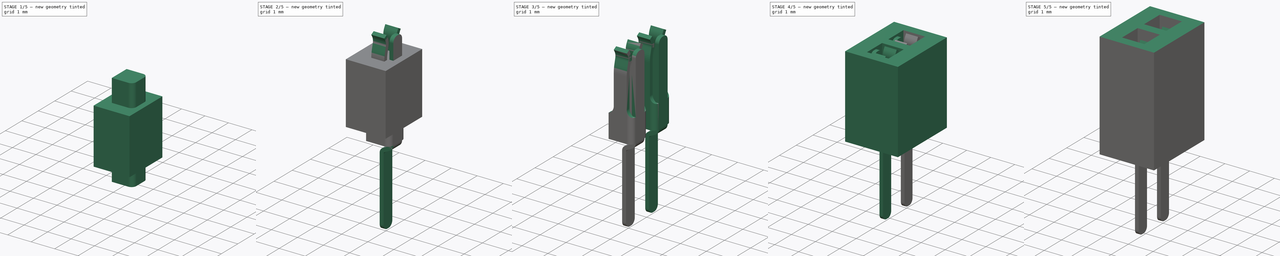
[diagram: build sequence overview — one tinted view per stage of 5, left to right]
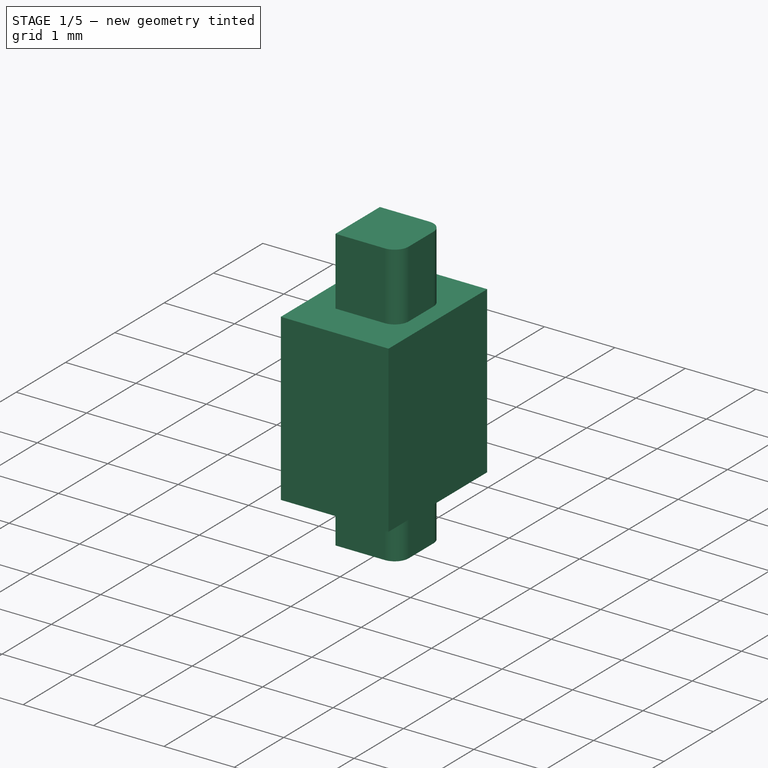
[diagram: stage 1 of 5 — iso view after this stage's code; geometry added in this stage tinted green]
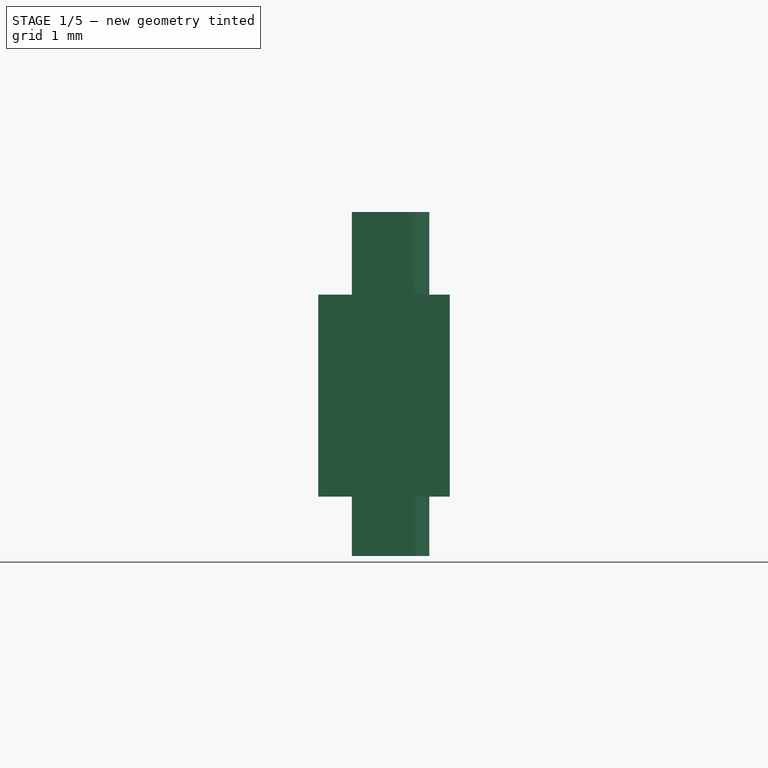
[diagram: stage 1 of 5 — front view after this stage's code; geometry added in this stage tinted green]
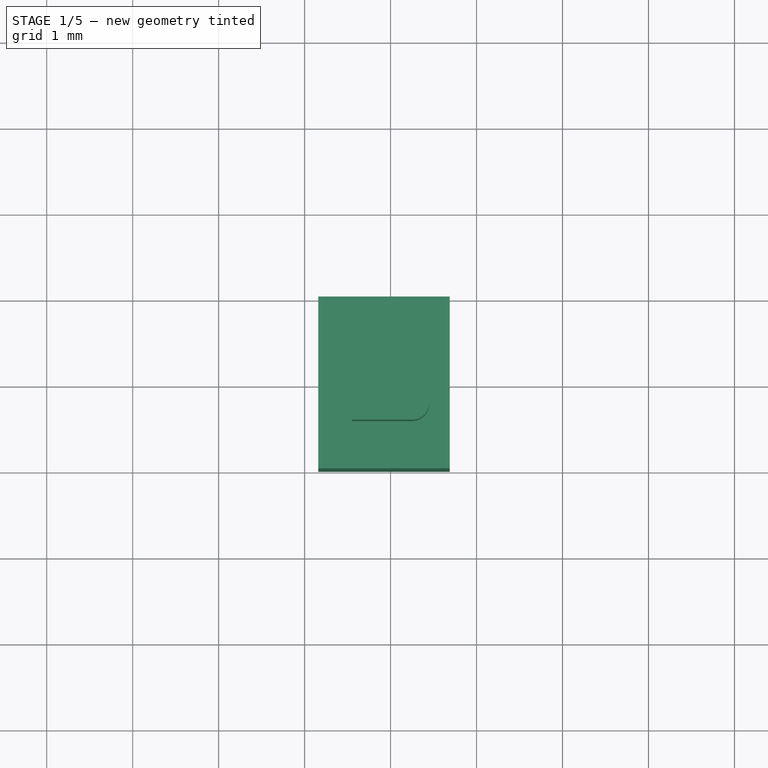
[diagram: stage 1 of 5 — top view after this stage's code; geometry added in this stage tinted green]
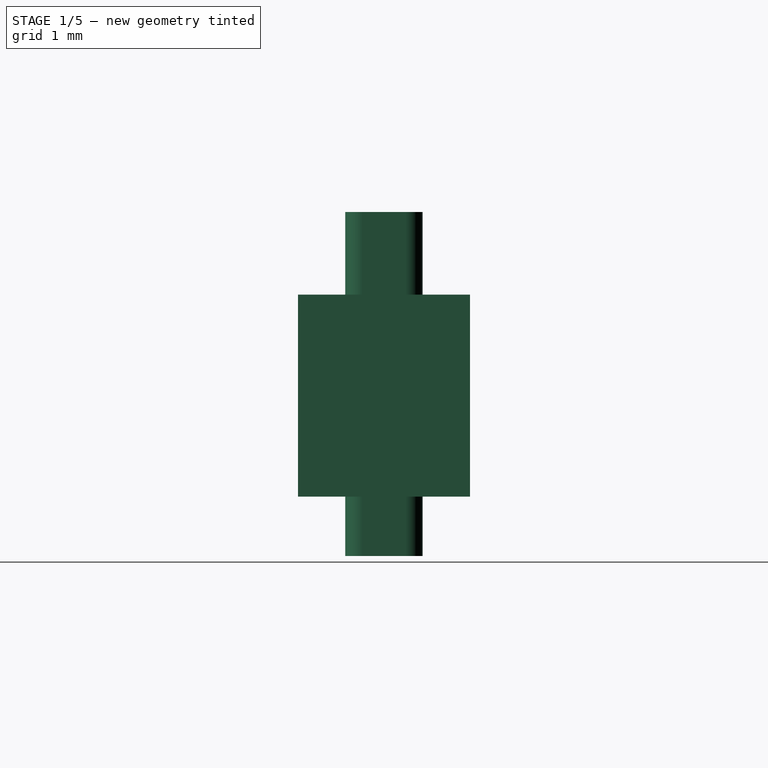
[diagram: stage 1 of 5 — right view after this stage's code; geometry added in this stage tinted green]
FCSTD DOCUMENT  (FreeCAD 0.16R6703 (Git))
Label: Socket_Strip_1.27mm
License: All rights reserved
LicenseURL: http://en.wikipedia.org/wiki/All_rights_reserved
objects: Sketcher::SketchObject×11, Part::Extrusion×10, Part::FeaturePython×6, Part::Cut×5, Part::MultiFuse×4, Part::Fillet×3, Part::MultiCommon×3, Part::Compound×3, Part::Sweep×2, Part::Mirroring×2, Part::Thickness×1
note: 50 computed .brp shape members not serialized (recipe doc carries the construction recipe); baked Part::Feature solids carry a one-line shape summary decoded from their .brp

FEATURE [Sketcher::SketchObject] Sketch006
  Placement = pos=(0,0,0) rot=(0.57735,-0.57735,-0.57735;2.0944rad)
  sketch-geometry (5):
    g0: LineSegment StartX=0.45 StartY=1.56 StartZ=0 EndX=0.45 EndY=3 EndZ=0
    g1: LineSegment StartX=0.414248 StartY=3.2914 StartZ=0 EndX=0.367236 EndY=3.4801 EndZ=0
    g2: LineSegment StartX=0.398859 StartY=3.71014 StartZ=0 EndX=0.45 EndY=3.8 EndZ=0
    g3: ArcOfCircle CenterX=-0.755409 CenterY=3 CenterZ=0 NormalX=0 NormalY=0 NormalZ=1 Radius=1.20541 StartAngle=0 EndAngle=0.244162
    g4: ArcOfCircle CenterX=0.670368 CenterY=3.55562 CenterZ=0 NormalX=0 NormalY=0 NormalZ=1 Radius=0.312397 StartAngle=2.62421 EndAngle=3.38575
  constraints (10):
    c: Vertical(g0)
    c: DistanceY(g2) = 3.8
    c: PointOnObject(g2,g0)
    c: Tangent(g1,g3) = -1.5708
    c: Tangent(g0,g3) = -1.5708
    c: Tangent(g1,g4) = 1.5708
    c: Tangent(g2,g4) = 1.5708
    c: DistanceY(g0) = 1.56
    c: DistanceX(g0) = 0.45
    c: DistanceY(g0) = 3
FEATURE [Sketcher::SketchObject] Sketch007
  Placement = pos=(0,0,1.56) rot=(0,0,1;0rad)
  sketch-geometry (4):
    g0: LineSegment StartX=-0.45 StartY=-0.3 StartZ=0 EndX=0.45 EndY=-0.3 EndZ=0
    g1: LineSegment StartX=0.45 StartY=-0.3 StartZ=0 EndX=0.45 EndY=-0.45 EndZ=0
    g2: LineSegment StartX=0.45 StartY=-0.45 StartZ=0 EndX=-0.45 EndY=-0.45 EndZ=0
    g3: LineSegment StartX=-0.45 StartY=-0.45 StartZ=0 EndX=-0.45 EndY=-0.3 EndZ=0
  constraints (12):
    c: Coincident(g0,g1)
    c: Coincident(g1,g2)
    c: Coincident(g2,g3)
    c: Coincident(g3,g0)
    c: Horizontal(g0)
    c: Horizontal(g2)
    c: Vertical(g1)
    c: Vertical(g3)
    c: Distance(g2) = 0.9
    c: Distance(g3) = 0.15
    c: Symmetric(g2,g1,g-2)
    c: DistanceY(g2) = -0.45
FEATURE [Part::Sweep] Sweep001
  Frenet = true
  Sections = -> [Sketch007]
  Solid = true
  Spine = -> Sketch006 [Edge1,Edge2,Edge3,Edge4,Edge5]
  Transition = 1
FEATURE [Sketcher::SketchObject] Sketch008
  Placement = pos=(0,-0.45,0) rot=(1,0,0;1.5708rad)
  sketch-geometry (6):
    g0: LineSegment StartX=-0.25 StartY=3.97605 StartZ=0 EndX=-0.25 EndY=1.84316 EndZ=0
    g1: LineSegment StartX=-0.437624 StartY=1.565 StartZ=0 EndX=-0.45 EndY=1.56 EndZ=0
    g2: LineSegment StartX=-0.25 StartY=3.97605 StartZ=0 EndX=-0.905765 EndY=3.97605 EndZ=0
    g3: LineSegment StartX=-0.905765 StartY=3.97605 StartZ=0 EndX=-0.905765 EndY=1.56 EndZ=0
    g4: LineSegment StartX=-0.905765 StartY=1.56 StartZ=0 EndX=-0.45 EndY=1.56 EndZ=0
    g5: ArcOfCircle CenterX=-0.55 CenterY=1.84316 CenterZ=0 NormalX=0 NormalY=0 NormalZ=1 Radius=0.3 StartAngle=5.09634 EndAngle=6.28319
  constraints (14):
    c: Vertical(g0)
    c: DistanceX(g1) = -0.45
    c: DistanceY(g1) = 1.56
    c: Coincident(g0,g2)
    c: Horizontal(g2)
    c: Coincident(g2,g3)
    c: Vertical(g3)
    c: Coincident(g3,g4)
    c: Coincident(g4,g1)
    c: Horizontal(g4)
    c: Tangent(g0,g5) = 1.5708
    c: Tangent(g1,g5) = 1.5708
    c: Radius(g5) = 0.3
    c: DistanceX(g0) = -0.25
FEATURE [Part::Extrusion] Extrude003
  Base = -> Sketch005
  Dir = (0,0,4)
  Solid = true
FEATURE [Part::Fillet] Fillet002
  Base = -> Extrude003
  Edges = 2 edges r=0.2: [Edge1,Edge8]
FEATURE [Part::Extrusion] Extrude004
  Base = -> Sketch008
  Dir = (0,1,0)
  Solid = true
FEATURE [Part::Mirroring] Part__Mirroring  label="Extrude004 (Mirror #1)"
  Base = (0,0,0)
  Normal = (1,0,0)
  Source = -> Extrude004
FEATURE [Part::MultiFuse] Fusion
  Shapes = -> [Part__Mirroring,Extrude004]
FEATURE [Part::Cut] Cut001
  Base = -> Sweep001
  Tool = -> Fusion
FEATURE [Sketcher::SketchObject] Sketch012
  Placement = pos=(0,-1,0) rot=(1,0,0;1.5708rad)
  sketch-geometry (4):
    g0: LineSegment StartX=-0.841523 StartY=3.1 StartZ=0 EndX=0.688328 EndY=3.1 EndZ=0
    g1: LineSegment StartX=0.688328 StartY=3.1 StartZ=0 EndX=0.688328 EndY=0.75 EndZ=0
    g2: LineSegment StartX=0.688328 StartY=0.75 StartZ=0 EndX=-0.841523 EndY=0.75 EndZ=0
    g3: LineSegment StartX=-0.841523 StartY=0.75 StartZ=0 EndX=-0.841523 EndY=3.1 EndZ=0
  constraints (10):
    c: Coincident(g0,g1)
    c: Coincident(g1,g2)
    c: Coincident(g2,g3)
    c: Coincident(g3,g0)
    c: Horizontal(g0)
    c: Horizontal(g2)
    c: Vertical(g1)
    c: Vertical(g3)
    c: DistanceY(g1) = 0.75
    c: Distance(g1) = 2.35
FEATURE [Part::Extrusion] Extrude010
  Base = -> Sketch012
  Dir = (0,2,0)
  Solid = true
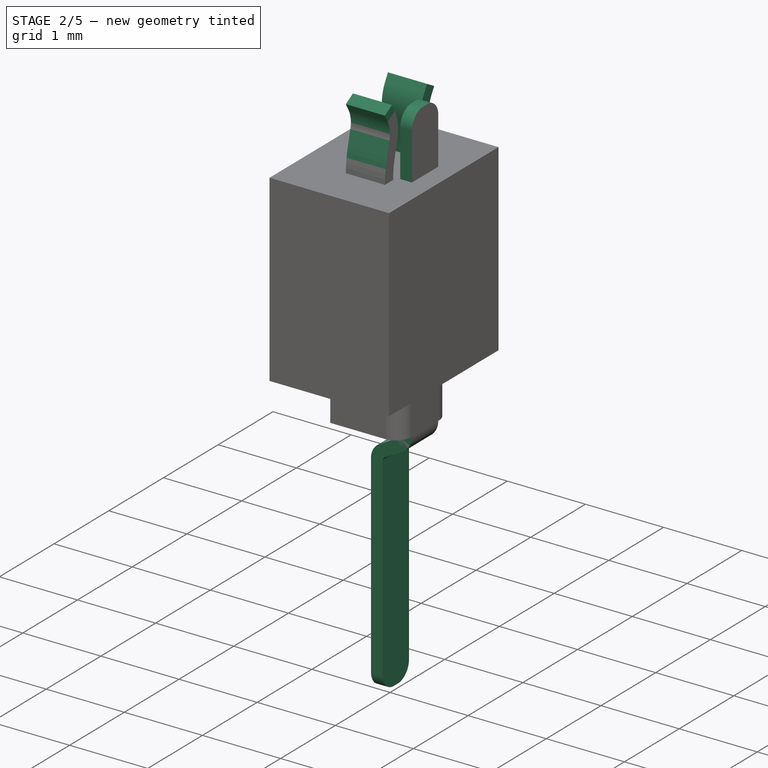
[diagram: stage 2 of 5 — iso view after this stage's code; geometry added in this stage tinted green]
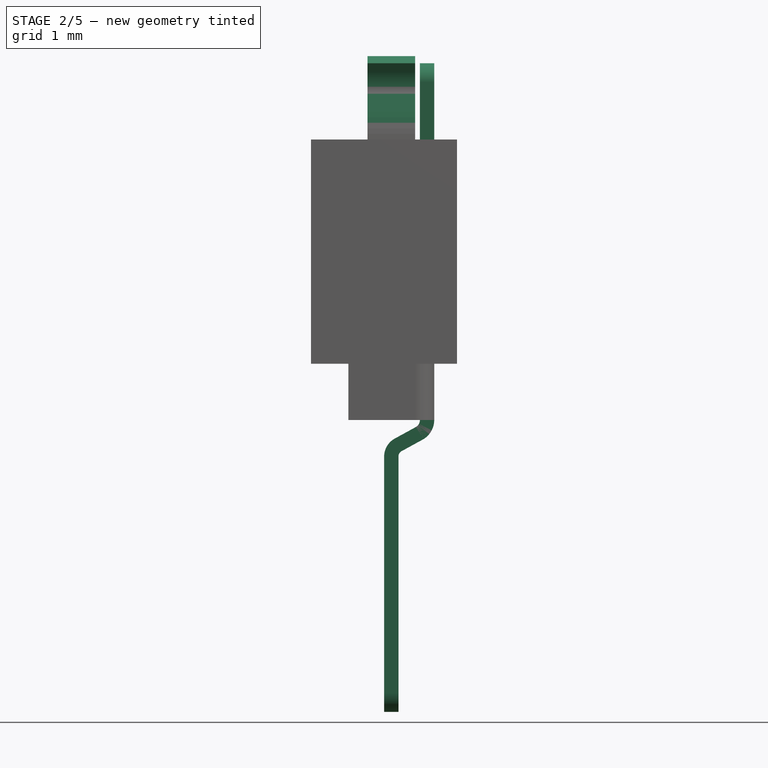
[diagram: stage 2 of 5 — front view after this stage's code; geometry added in this stage tinted green]
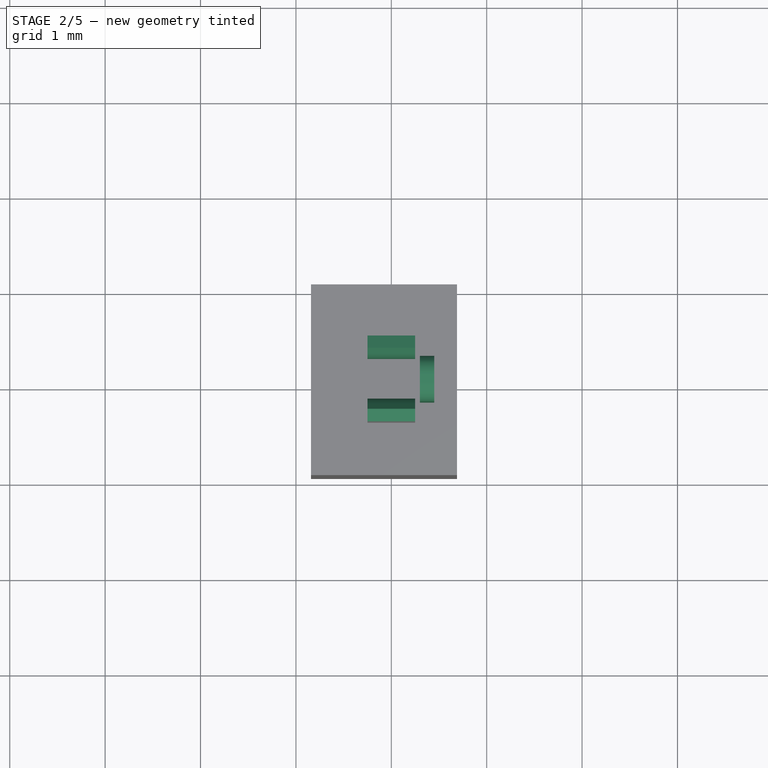
[diagram: stage 2 of 5 — top view after this stage's code; geometry added in this stage tinted green]
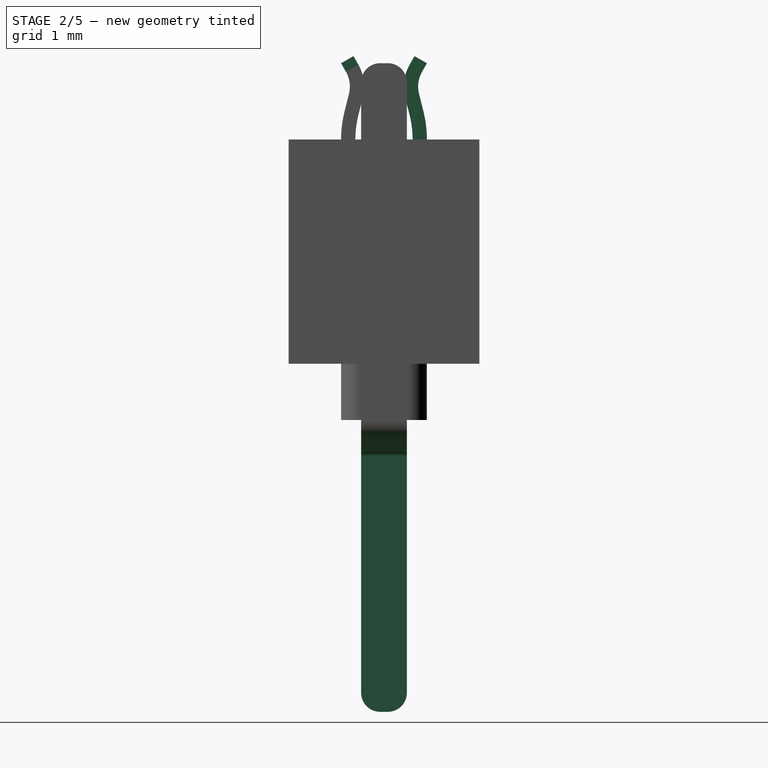
[diagram: stage 2 of 5 — right view after this stage's code; geometry added in this stage tinted green]
FEATURE [Sketcher::SketchObject] Sketch003
  Placement = pos=(0,0,0) rot=(1,0,0;1.5708rad)
  sketch-geometry (5):
    g0: LineSegment StartX=0 StartY=-3 StartZ=0 EndX=0 EndY=-0.322351 EndZ=0
    g1: LineSegment StartX=0.375 StartY=0.06 StartZ=0 EndX=0.375 EndY=3.8 EndZ=0
    g2: LineSegment StartX=0.291701 StartY=-0.080628 StartZ=0 EndX=0.0718125 EndY=-0.201115 EndZ=0
    g3: ArcOfCircle CenterX=0.214644 CenterY=0.06 CenterZ=0 NormalX=0 NormalY=0 NormalZ=1 Radius=0.160356 StartAngle=5.21365 EndAngle=6.28319
    g4: ArcOfCircle CenterX=0.138243 CenterY=-0.322351 CenterZ=0 NormalX=0 NormalY=0 NormalZ=1 Radius=0.138243 StartAngle=2.07206 EndAngle=3.14159
  constraints (11):
    c: Vertical(g0)
    c: Vertical(g1)
    c: DistanceY(g0) = -3
    c: DistanceX(g1) = 0.375
    c: PointOnObject(g0,g-2)
    c: Tangent(g1,g3) = -1.5708
    c: Tangent(g2,g3) = 1.5708
    c: Tangent(g2,g4) = -1.5708
    c: Tangent(g0,g4) = 1.5708
    c: DistanceY(g1) = 3.8
    c: DistanceY(g1) = 0.06
FEATURE [Sketcher::SketchObject] Sketch004
  Placement = pos=(0,0,-3) rot=(0,0,1;0rad)
  sketch-geometry (4):
    g0: LineSegment StartX=-0.075 StartY=0.24 StartZ=0 EndX=0.075 EndY=0.24 EndZ=0
    g1: LineSegment StartX=0.075 StartY=0.24 StartZ=0 EndX=0.075 EndY=-0.24 EndZ=0
    g2: LineSegment StartX=0.075 StartY=-0.24 StartZ=0 EndX=-0.075 EndY=-0.24 EndZ=0
    g3: LineSegment StartX=-0.075 StartY=-0.24 StartZ=0 EndX=-0.075 EndY=0.24 EndZ=0
  constraints (12):
    c: Coincident(g0,g1)
    c: Coincident(g1,g2)
    c: Coincident(g2,g3)
    c: Coincident(g3,g0)
    c: Horizontal(g0)
    c: Horizontal(g2)
    c: Vertical(g1)
    c: Vertical(g3)
    c: Distance(g1) = 0.48
    c: Symmetric(g0,g1,g-1)
    c: Distance(g0) = 0.15
    c: Symmetric(g0,g0,g-2)
FEATURE [Part::Sweep] Sweep
  Frenet = true
  Sections = -> [Sketch004]
  Solid = true
  Spine = -> Sketch003 [Edge1,Edge2,Edge3,Edge4,Edge5]
  Transition = 1
FEATURE [Part::Fillet] Fillet
  Base = -> Sweep
  Edges = 4 edges r=0.2: [Edge2,Edge8,Edge39,Edge43]
FEATURE [Sketcher::SketchObject] Sketch005
  Placement = pos=(0,0,0.06) rot=(0,0,1;0rad)
  sketch-geometry (4):
    g0: LineSegment StartX=0.45 StartY=0.45 StartZ=0 EndX=-0.45 EndY=0.45 EndZ=0
    g1: LineSegment StartX=-0.45 StartY=0.45 StartZ=0 EndX=-0.45 EndY=-0.45 EndZ=0
    g2: LineSegment StartX=-0.45 StartY=-0.45 StartZ=0 EndX=0.45 EndY=-0.45 EndZ=0
    g3: LineSegment StartX=0.45 StartY=-0.45 StartZ=0 EndX=0.45 EndY=0.45 EndZ=0
  constraints (12):
    c: Coincident(g0,g1)
    c: Coincident(g1,g2)
    c: Coincident(g2,g3)
    c: Coincident(g3,g0)
    c: Horizontal(g0)
    c: Horizontal(g2)
    c: Vertical(g1)
    c: Vertical(g3)
    c: Distance(g0) = 0.9
    c: Equal(g3,g0)
    c: Symmetric(g0,g0,g-2)
    c: Symmetric(g0,g1,g-1)
FEATURE [Part::Extrusion] Extrude002
  Base = -> Sketch005
  Dir = (0,0,1.5)
  Solid = true
FEATURE [Part::Fillet] Fillet001
  Base = -> Extrude002
  Edges = 2 edges r=0.2: [Edge1,Edge8]
FEATURE [Part::Thickness] Thickness
  Faces = -> Fillet001 [Face5,Face4,Face2]
  Intersection = false
  Join = 2
  Mode = 0
  SelfIntersection = false
  Value = -0.15
FEATURE [Part::MultiCommon] Common
  Shapes = -> [Cut001,Fillet002]
FEATURE [Part::Mirroring] Part__Mirroring001  label="Common (Mirror #2)"
  Base = (0,0,0)
  Normal = (0,1,0)
  Source = -> Common
FEATURE [Part::MultiFuse] Fusion001  label="pinSocket"
  Placement = pos=(0,0,0.1) rot=(0,0,1;0rad)
  Shapes = -> [Part__Mirroring001,Common,Thickness,Fillet]
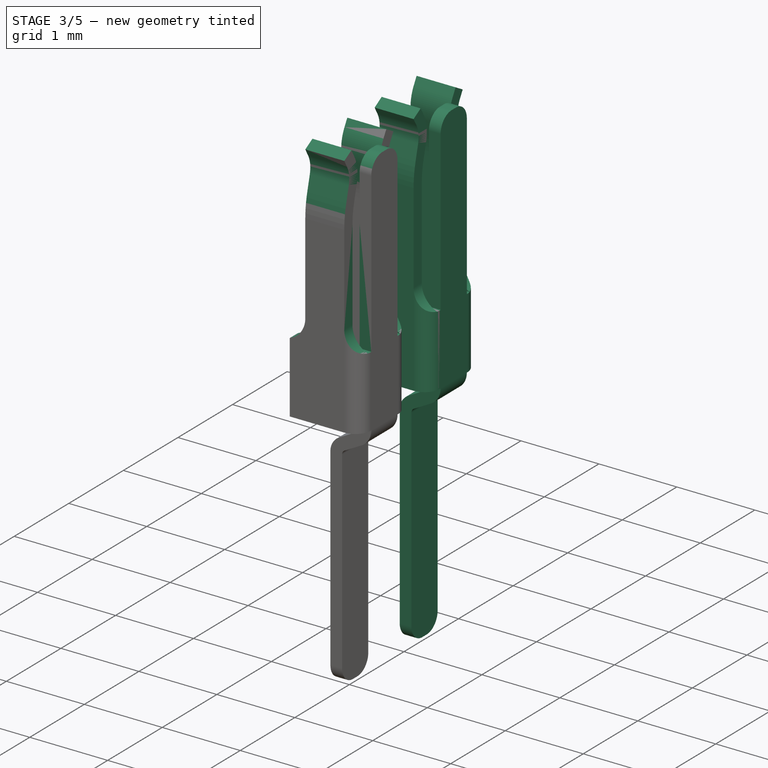
[diagram: stage 3 of 5 — iso view after this stage's code; geometry added in this stage tinted green]
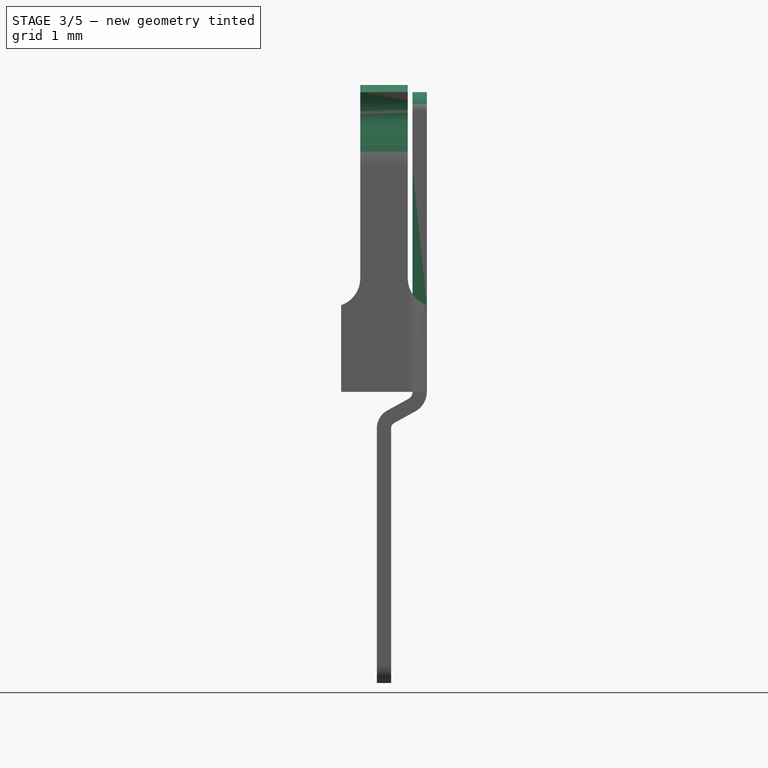
[diagram: stage 3 of 5 — front view after this stage's code; geometry added in this stage tinted green]
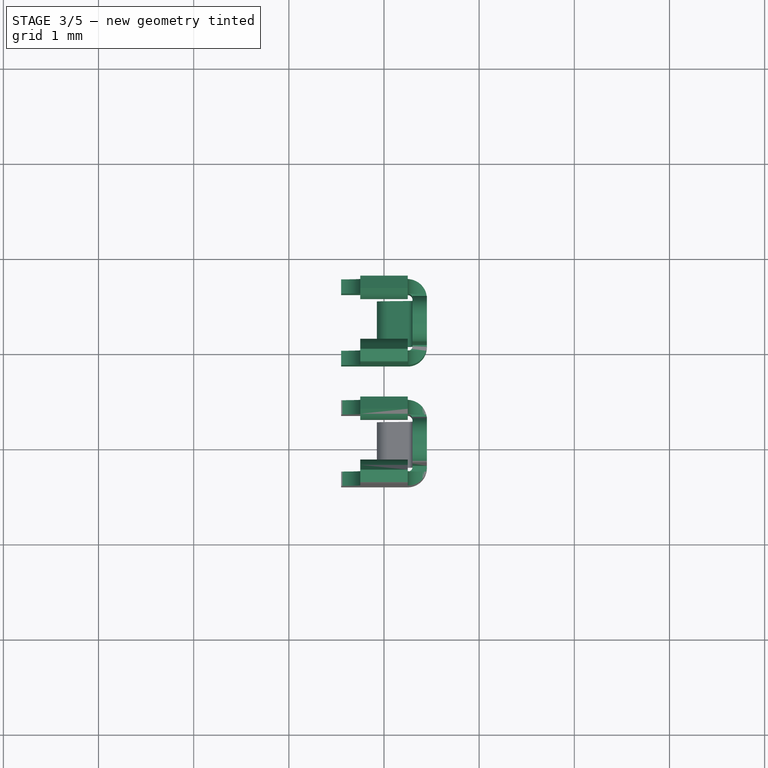
[diagram: stage 3 of 5 — top view after this stage's code; geometry added in this stage tinted green]
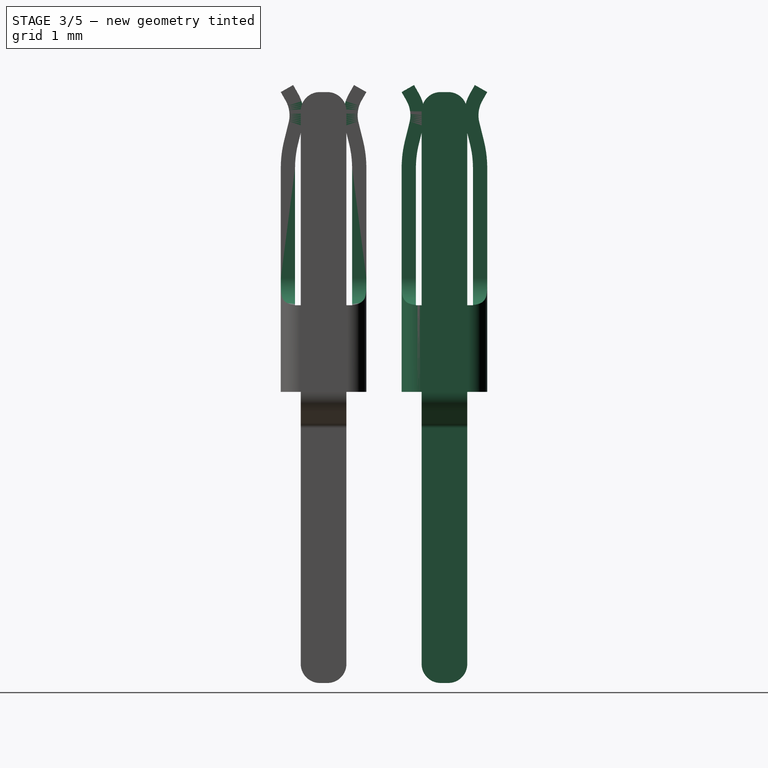
[diagram: stage 3 of 5 — right view after this stage's code; geometry added in this stage tinted green]
FEATURE [Sketcher::SketchObject] Sketch
  Placement = pos=(0,-1,0) rot=(1,0,0;1.5708rad)
  sketch-geometry (4):
    g0: LineSegment StartX=-0.814153 StartY=3.1 StartZ=0 EndX=0.822834 EndY=3.1 EndZ=0
    g1: LineSegment StartX=0.822834 StartY=3.1 StartZ=0 EndX=0.822834 EndY=-3.43833 EndZ=0
    g2: LineSegment StartX=0.822834 StartY=-3.43833 StartZ=0 EndX=-0.814153 EndY=-3.43833 EndZ=0
    g3: LineSegment StartX=-0.814153 StartY=-3.43833 StartZ=0 EndX=-0.814153 EndY=3.1 EndZ=0
  constraints (9):
    c: Coincident(g0,g1)
    c: Coincident(g1,g2)
    c: Coincident(g2,g3)
    c: Coincident(g3,g0)
    c: Horizontal(g0)
    c: Horizontal(g2)
    c: Vertical(g1)
    c: Vertical(g3)
    c: DistanceY(g0) = 3.1
FEATURE [Part::Extrusion] Extrude
  Base = -> Sketch
  Dir = (0,2,0)
  Solid = true
FEATURE [Sketcher::SketchObject] Sketch011
  Placement = pos=(0,-1,0) rot=(1,0,0;1.5708rad)
  sketch-geometry (4):
    g0: LineSegment StartX=-0.841523 StartY=4.62891 StartZ=0 EndX=1 EndY=4.62891 EndZ=0
    g1: LineSegment StartX=1 StartY=4.62891 StartZ=0 EndX=1 EndY=0.16 EndZ=0
    g2: LineSegment StartX=1 StartY=0.16 StartZ=0 EndX=-0.841523 EndY=0.16 EndZ=0
    g3: LineSegment StartX=-0.841523 StartY=0.16 StartZ=0 EndX=-0.841523 EndY=4.62891 EndZ=0
  constraints (8):
    c: Coincident(g0,g1)
    c: Coincident(g1,g2)
    c: Coincident(g2,g3)
    c: Coincident(g3,g0)
    c: Horizontal(g0)
    c: Horizontal(g2)
    c: Vertical(g1)
    c: Vertical(g3)
FEATURE [Part::Extrusion] Extrude007
  Base = -> Sketch011
  Dir = (0,2,0)
  Solid = true
FEATURE [Part::Cut] Cut003
  Base = -> Fusion001
  Placement = pos=(0,0,-0.59) rot=(0,0,1;0rad)
  Tool = -> Extrude
FEATURE [Part::Cut] Cut004
  Base = -> Fusion001
  Tool = -> Extrude007
FEATURE [Part::MultiCommon] Common002
  Placement = pos=(0,0,-0.59) rot=(0,0,1;0rad)
  Shapes = -> [Fusion001,Extrude010]
FEATURE [Part::MultiFuse] Fusion003  label="pinH003"
  Shapes = -> [Cut003,Cut004,Common002]
FEATURE [Part::FeaturePython] Array010  # Draft array (typed FeaturePython)
  Angle = 360
  ArrayType = 0
  Axis = (0,0,1)
  Base = -> Fusion003
  Center = (0,0,0)
  Fuse = false
  IntervalAxis = (0,0,0)
  IntervalX = (1,0,0)
  IntervalY = (0,1.27,0)
  IntervalZ = (0,0,0)
  NumberPolar = 0
  NumberX = 1
  NumberY = 2
  NumberZ = 1
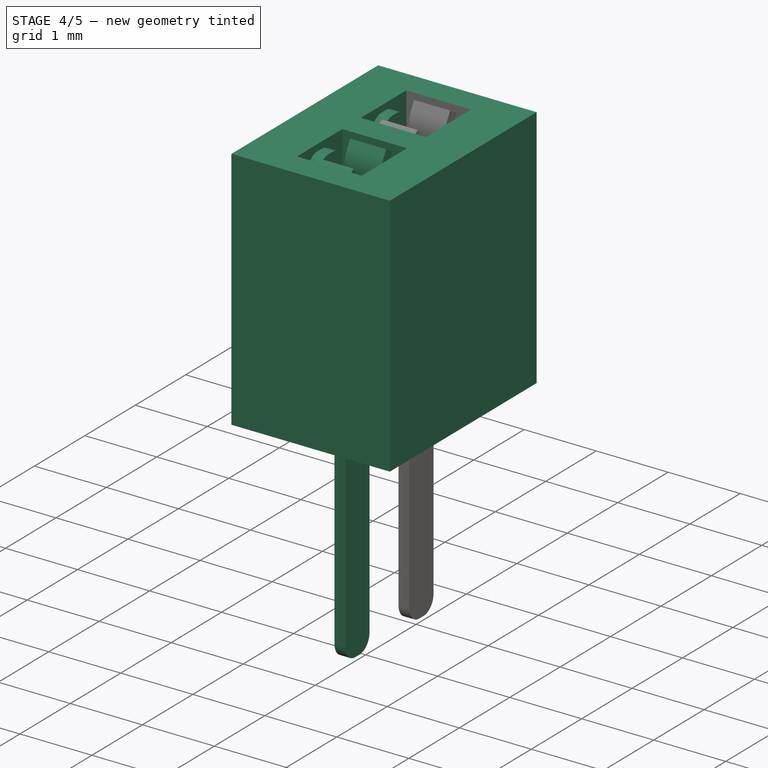
[diagram: stage 4 of 5 — iso view after this stage's code; geometry added in this stage tinted green]
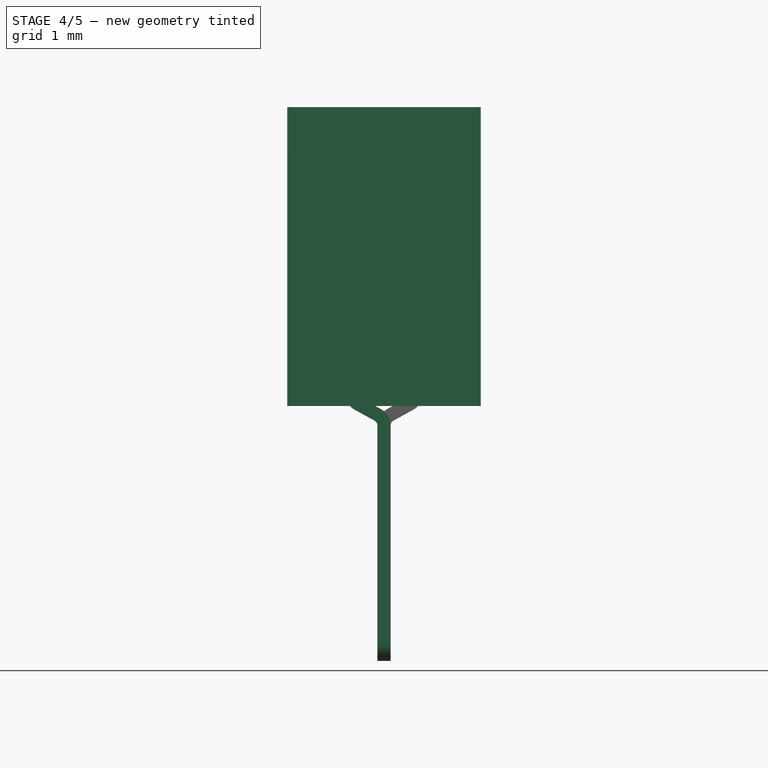
[diagram: stage 4 of 5 — front view after this stage's code; geometry added in this stage tinted green]
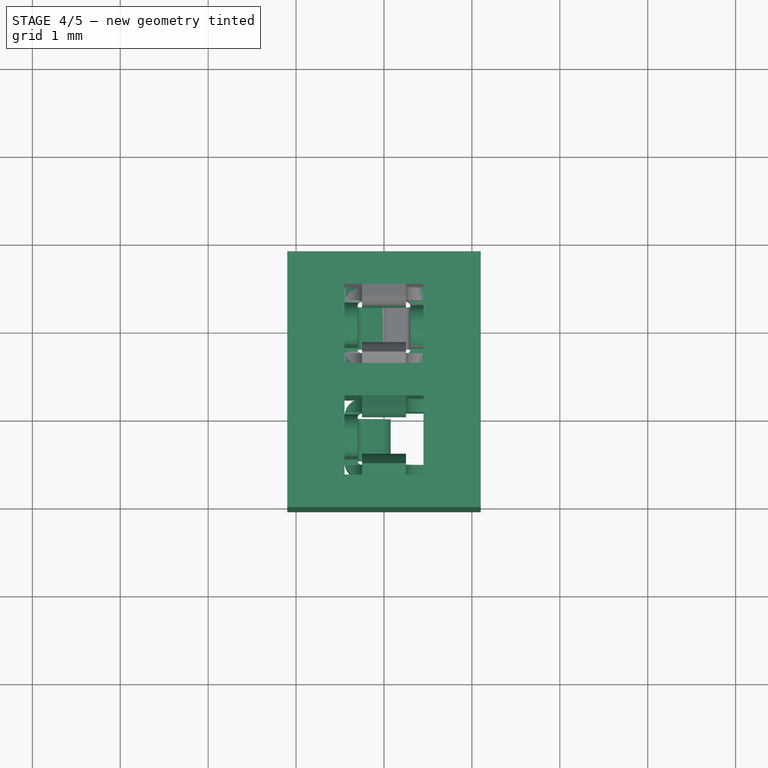
[diagram: stage 4 of 5 — top view after this stage's code; geometry added in this stage tinted green]
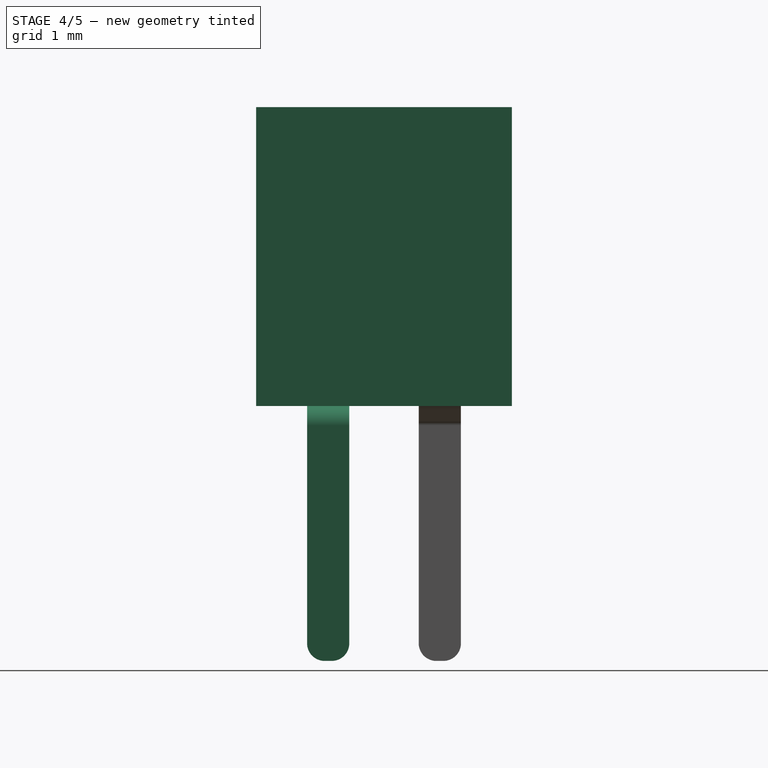
[diagram: stage 4 of 5 — right view after this stage's code; geometry added in this stage tinted green]
FEATURE [Sketcher::SketchObject] Sketch010
  Placement = pos=(0,-1,0) rot=(1,0,0;1.5708rad)
  sketch-geometry (4):
    g0: LineSegment StartX=-0.841523 StartY=1.95 StartZ=0 EndX=0.688328 EndY=1.95 EndZ=0
    g1: LineSegment StartX=0.688328 StartY=1.95 StartZ=0 EndX=0.688328 EndY=1 EndZ=0
    g2: LineSegment StartX=0.688328 StartY=1 StartZ=0 EndX=-0.841523 EndY=1 EndZ=0
    g3: LineSegment StartX=-0.841523 StartY=1 StartZ=0 EndX=-0.841523 EndY=1.95 EndZ=0
  constraints (9):
    c: Coincident(g0,g1)
    c: Coincident(g1,g2)
    c: Coincident(g2,g3)
    c: Coincident(g3,g0)
    c: Horizontal(g0)
    c: Horizontal(g2)
    c: Vertical(g1)
    c: Vertical(g3)
    c: DistanceY(g0) = 1.95
FEATURE [Part::Extrusion] Extrude006
  Base = -> Sketch010
  Dir = (0,2,0)
  Solid = true
FEATURE [Part::Cut] Cut
  Base = -> Fusion001
  Placement = pos=(0,0,-1.99) rot=(0,0,1;0rad)
  Tool = -> Extrude
FEATURE [Part::Cut] Cut002
  Base = -> Fusion001
  Tool = -> Extrude007
FEATURE [Part::MultiCommon] Common001
  Placement = pos=(0,0,-0.84) rot=(0,0,1;0rad)
  Shapes = -> [Fusion001,Extrude006]
FEATURE [Part::MultiFuse] Fusion002  label="pinH2"
  Shapes = -> [Cut,Cut002,Common001]
FEATURE [Part::Extrusion] Extrude009  label="bodySocket002"
  Base = -> Sketch009
  Dir = (0,0,3.4)
  Solid = true
FEATURE [Part::FeaturePython] Array009  # Draft array (typed FeaturePython)
  Angle = 360
  ArrayType = 0
  Axis = (0,0,1)
  Base = -> Extrude009
  Center = (0,0,0)
  Fuse = true
  IntervalAxis = (0,0,0)
  IntervalX = (1.27,0,0)
  IntervalY = (0,1.27,0)
  IntervalZ = (0,0,0)
  NumberPolar = 1
  NumberX = 1
  NumberY = 2
  NumberZ = 1
FEATURE [Part::Compound] Compound004  label="1x02_H3.4"
  Links = -> [Array010,Array009]
  Placement = pos=(0,0,0) rot=(0,0,1;3.14159rad)
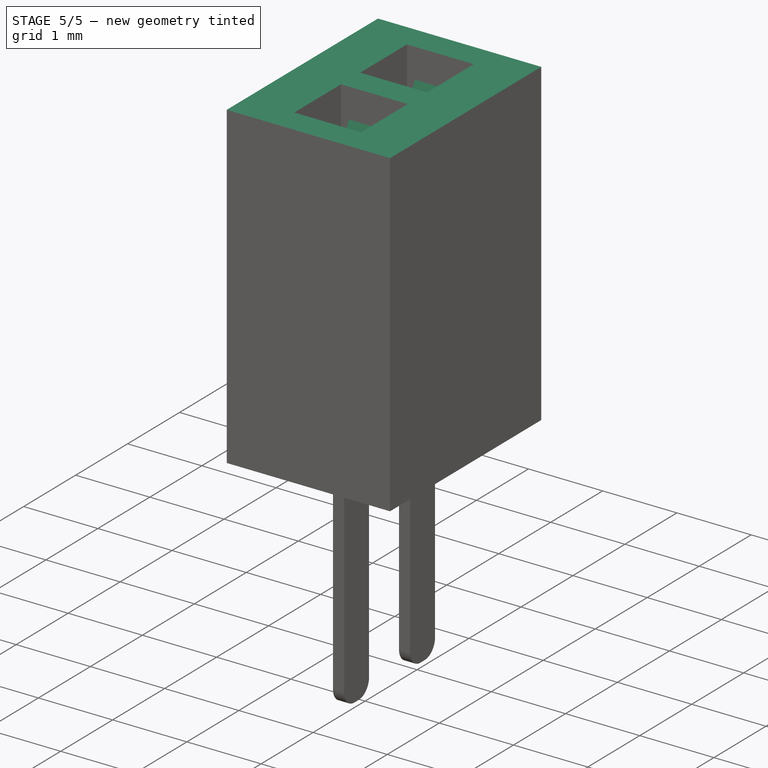
[diagram: stage 5 of 5 — iso view after this stage's code; geometry added in this stage tinted green]
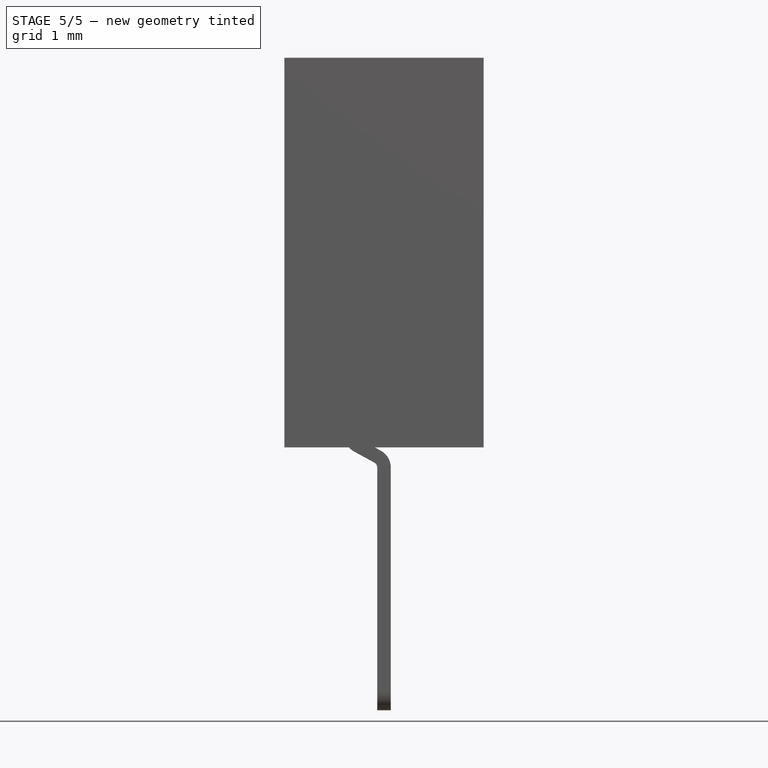
[diagram: stage 5 of 5 — front view after this stage's code; geometry added in this stage tinted green]
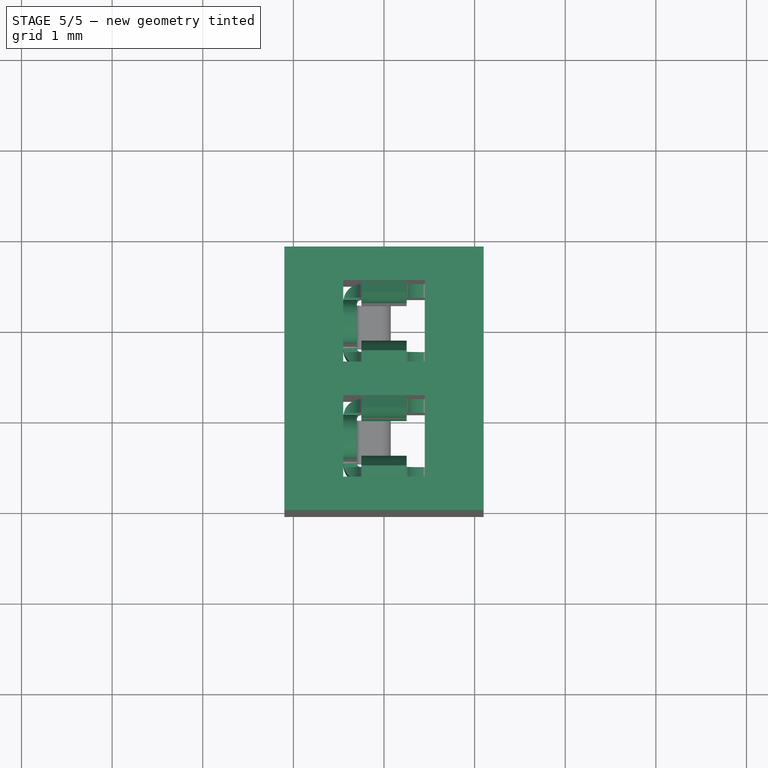
[diagram: stage 5 of 5 — top view after this stage's code; geometry added in this stage tinted green]
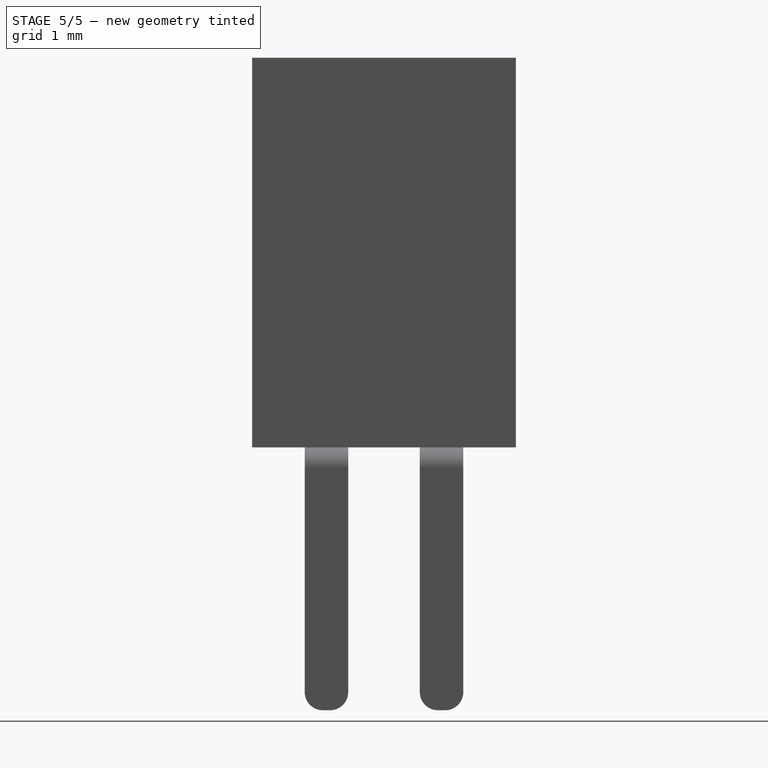
[diagram: stage 5 of 5 — right view after this stage's code; geometry added in this stage tinted green]
FEATURE [Sketcher::SketchObject] Sketch009
  sketch-geometry (8):
    g0: LineSegment StartX=-1.1 StartY=0.82 StartZ=0 EndX=1.1 EndY=0.82 EndZ=0
    g1: LineSegment StartX=1.1 StartY=0.82 StartZ=0 EndX=1.1 EndY=-0.82 EndZ=0
    g2: LineSegment StartX=1.1 StartY=-0.82 StartZ=0 EndX=-1.1 EndY=-0.82 EndZ=0
    g3: LineSegment StartX=-1.1 StartY=-0.82 StartZ=0 EndX=-1.1 EndY=0.82 EndZ=0
    g4: LineSegment StartX=-0.45 StartY=0.45 StartZ=0 EndX=0.45 EndY=0.45 EndZ=0
    g5: LineSegment StartX=0.45 StartY=0.45 StartZ=0 EndX=0.45 EndY=-0.45 EndZ=0
    g6: LineSegment StartX=0.45 StartY=-0.45 StartZ=0 EndX=-0.45 EndY=-0.45 EndZ=0
    g7: LineSegment StartX=-0.45 StartY=-0.45 StartZ=0 EndX=-0.45 EndY=0.45 EndZ=0
  constraints (24):
    c: Coincident(g0,g1)
    c: Coincident(g1,g2)
    c: Coincident(g2,g3)
    c: Coincident(g3,g0)
    c: Horizontal(g0)
    c: Horizontal(g2)
    c: Vertical(g1)
    c: Vertical(g3)
    c: Distance(g0) = 2.2
    c: Distance(g1) = 1.64
    c: Symmetric(g0,g1,g-1)
    c: Symmetric(g0,g0,g-2)
    c: Coincident(g4,g5)
    c: Coincident(g5,g6)
    c: Coincident(g6,g7)
    c: Coincident(g7,g4)
    c: Horizontal(g4)
    c: Horizontal(g6)
    c: Vertical(g5)
    c: Vertical(g7)
    c: Distance(g5) = 0.9
    c: Symmetric(g4,g4,g-2)
    c: Symmetric(g4,g5,g-1)
    c: Equal(g4,g5)
FEATURE [Part::Extrusion] Extrude005  label="bodySocket"
  Base = -> Sketch009
  Dir = (0,0,4.3)
  Solid = true
FEATURE [Part::FeaturePython] Array006  # Draft array (typed FeaturePython)
  Angle = 360
  ArrayType = 0
  Axis = (0,0,1)
  Base = -> Fusion001
  Center = (0,0,0)
  Fuse = false
  IntervalAxis = (0,0,0)
  IntervalX = (1,0,0)
  IntervalY = (0,1.27,0)
  IntervalZ = (0,0,0)
  NumberPolar = 1
  NumberX = 1
  NumberY = 2
  NumberZ = 1
FEATURE [Part::FeaturePython] Array007  # Draft array (typed FeaturePython)
  Angle = 360
  ArrayType = 0
  Axis = (0,0,1)
  Base = -> Extrude005
  Center = (0,0,0)
  Fuse = true
  IntervalAxis = (0,0,0)
  IntervalX = (1.27,0,0)
  IntervalY = (0,1.27,0)
  IntervalZ = (0,0,0)
  NumberPolar = 1
  NumberX = 1
  NumberY = 2
  NumberZ = 1
FEATURE [Part::Compound] Compound003  label="1x02_H4.3"
  Links = -> [Array007,Array006]
  Placement = pos=(0,0,0) rot=(0,0,1;3.14159rad)
FEATURE [Part::Extrusion] Extrude008  label="bodySocket001"
  Base = -> Sketch009
  Dir = (0,0,2)
  Solid = true
FEATURE [Part::FeaturePython] Array008  # Draft array (typed FeaturePython)
  Angle = 360
  ArrayType = 0
  Axis = (0,0,1)
  Base = -> Extrude008
  Center = (0,0,0)
  Fuse = true
  IntervalAxis = (0,0,0)
  IntervalX = (1.27,0,0)
  IntervalY = (0,1.27,0)
  IntervalZ = (0,0,0)
  NumberPolar = 1
  NumberX = 1
  NumberY = 2
  NumberZ = 1
FEATURE [Part::FeaturePython] Array  # Draft array (typed FeaturePython)
  Angle = 360
  ArrayType = 0
  Axis = (0,0,1)
  Base = -> Fusion002
  Center = (0,0,0)
  Fuse = false
  IntervalAxis = (0,0,0)
  IntervalX = (1,0,0)
  IntervalY = (0,1.27,0)
  IntervalZ = (0,0,0)
  NumberPolar = 0
  NumberX = 1
  NumberY = 2
  NumberZ = 1
FEATURE [Part::Compound] Compound  label="1x02_H2"
  Links = -> [Array,Array008]
  Placement = pos=(0,0,0) rot=(0,0,1;3.14159rad)
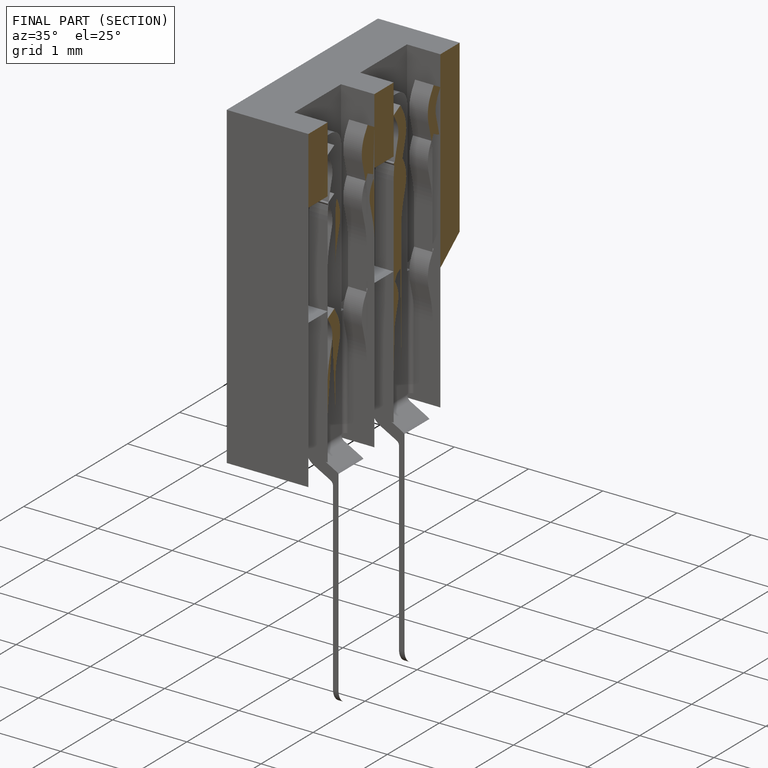
[diagram: finished part — half-section view (interior)]
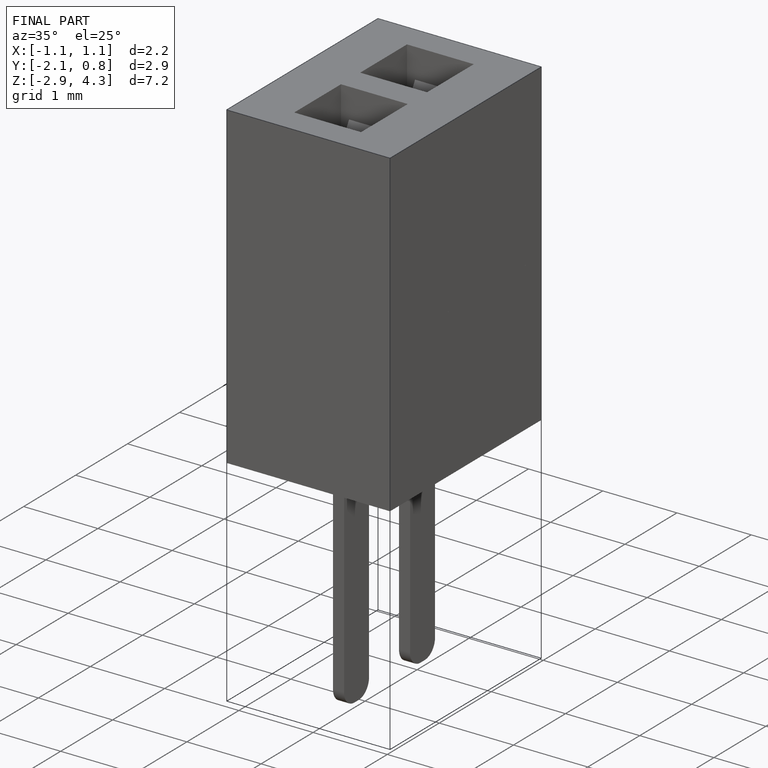
[diagram: finished part — iso view with bounding-box wireframe]
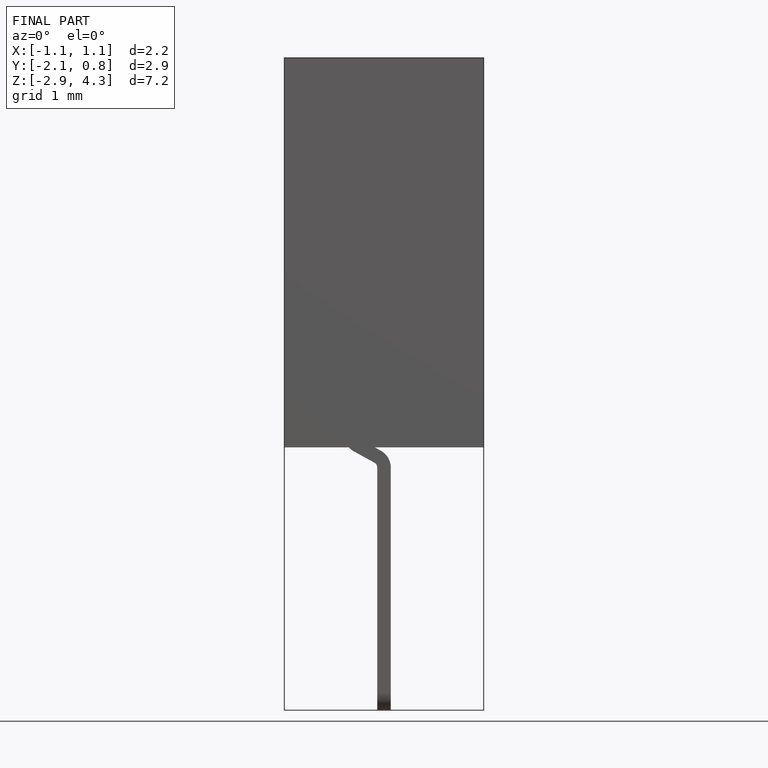
[diagram: finished part — front view with bounding-box wireframe]
